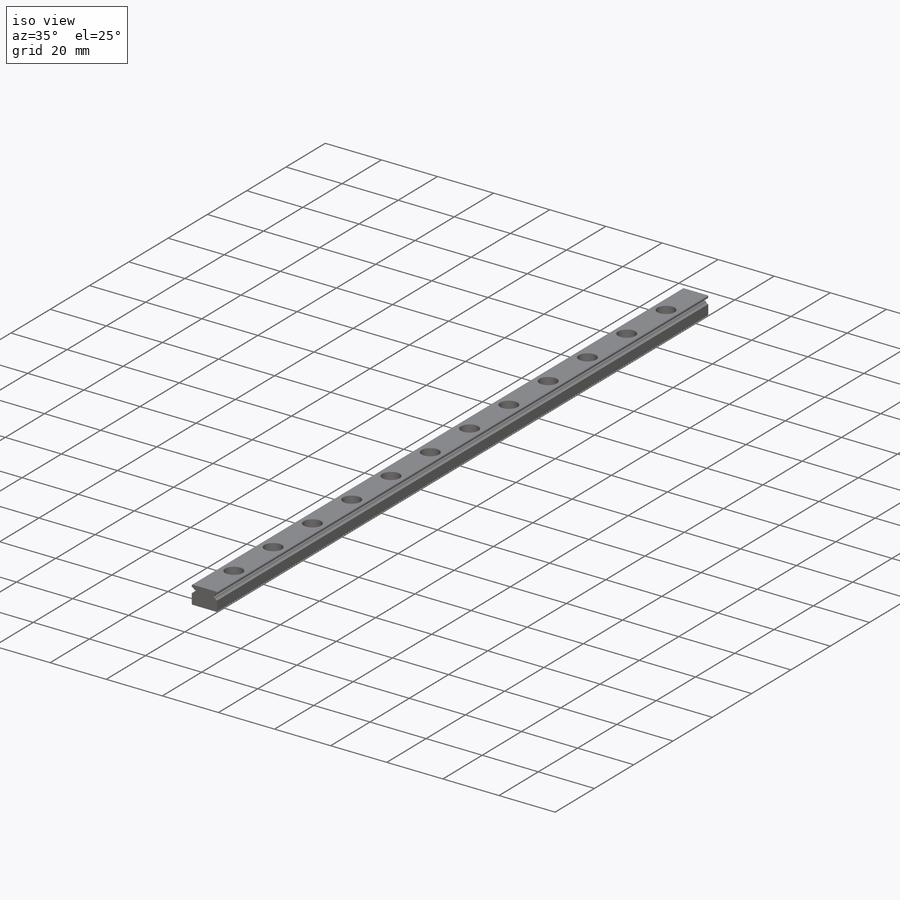
[diagram: iso view]
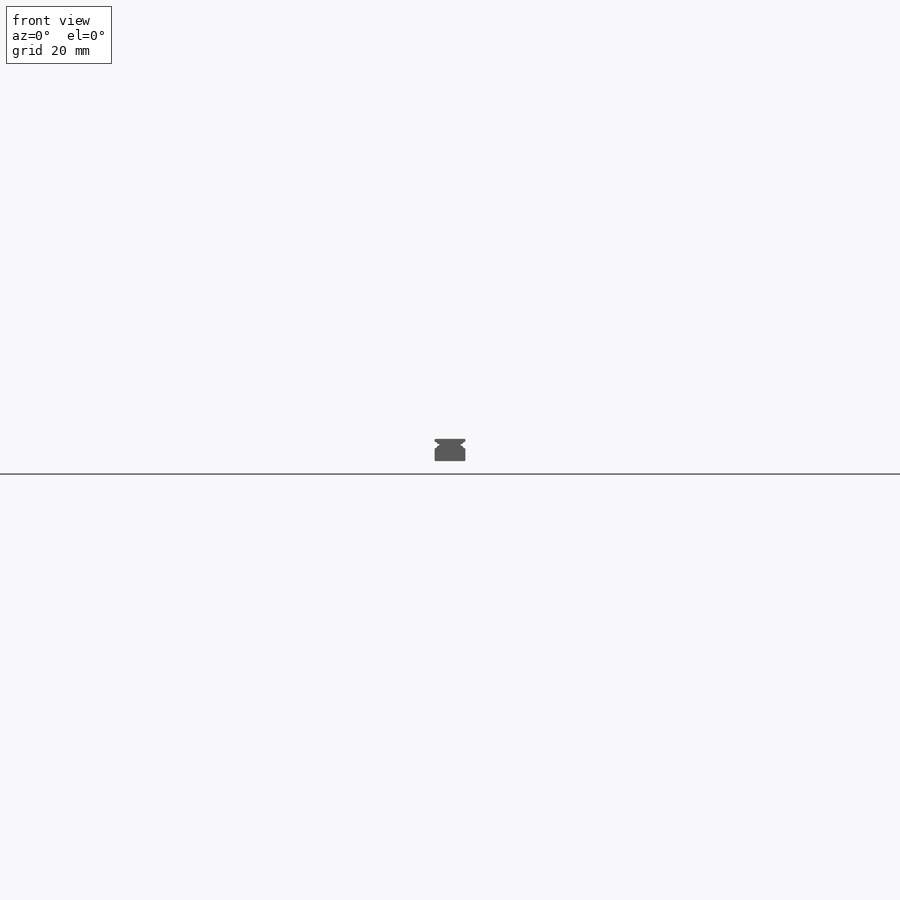
[diagram: front view]
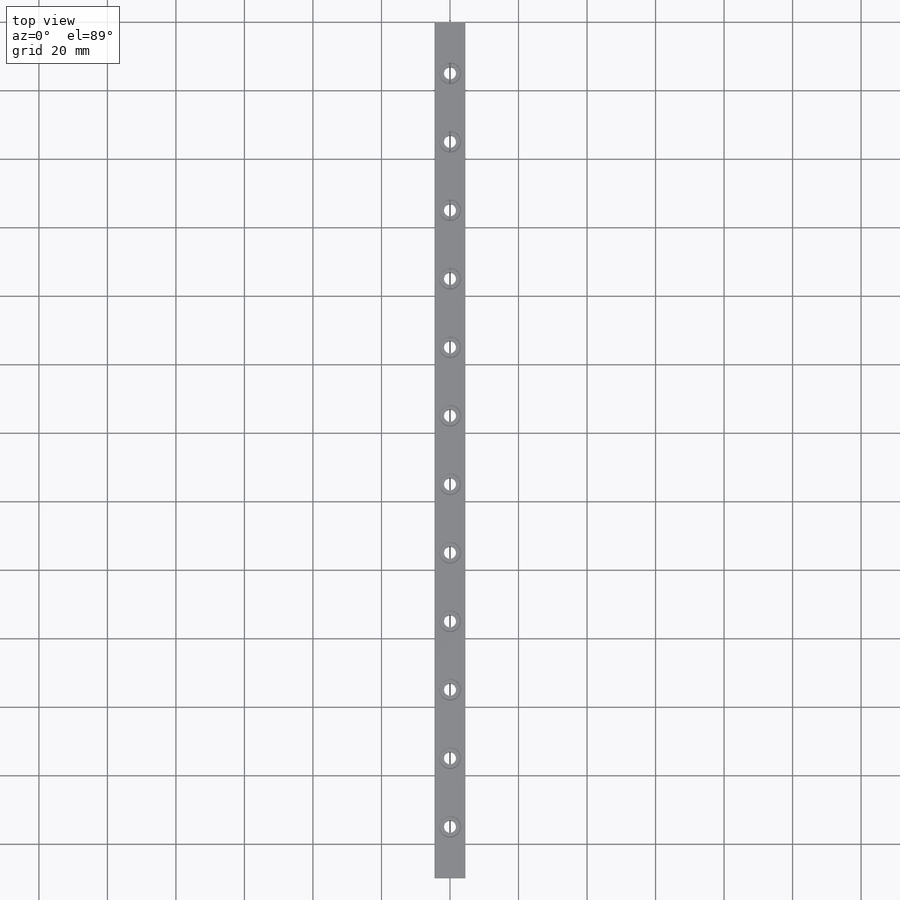
[diagram: top view]
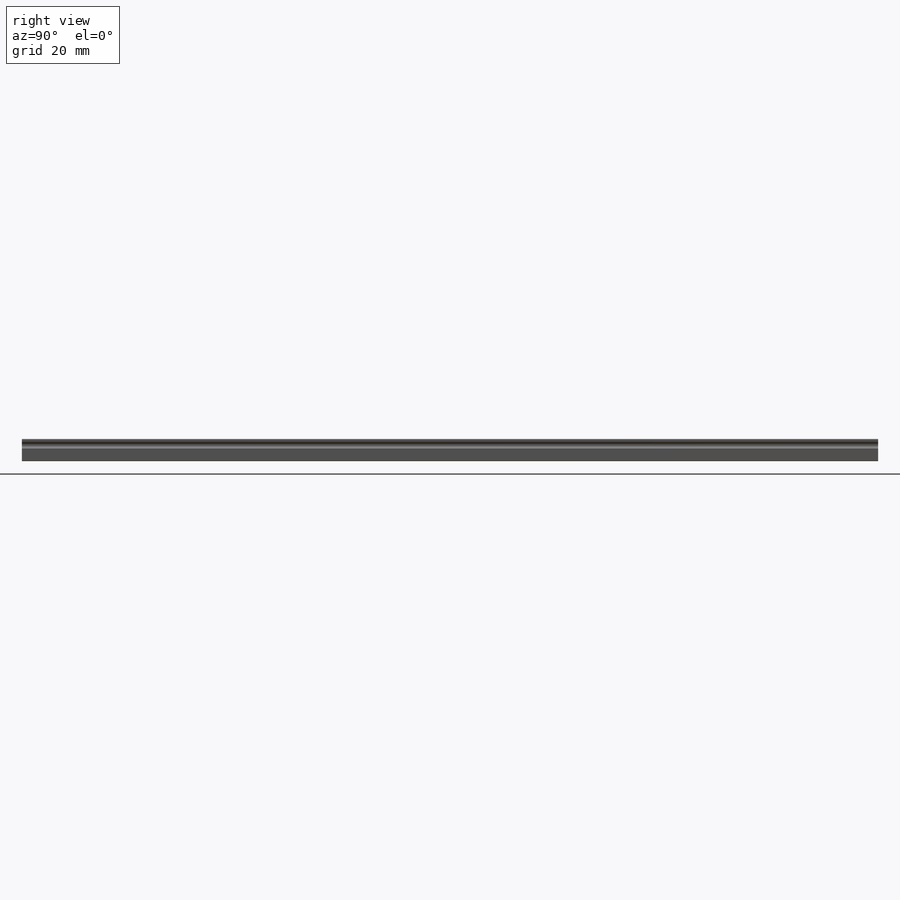
[diagram: right view]
SOLIDWORKS PART (.sldprt)
format: sldprt  version: not decoded by parser v0  size: 313,344 bytes
history: native  units: mm
features: plane x3, sketch x3, cut_extrude x2, material x1, extrude x1, chamfer x1, pattern_linear x1 (+9 scaffold rows collapsed)
feature tree (21):
  scaffold x9  (default folders/planes/origin — collapsed)
  material  "Материал <не указан>"
  plane  "Спереди"
  plane  "Сверху"
  plane  "Справа"
  sketch  "Sketch1"  dims[c1.D4=0.8mm c1.D5=0.8mm c2.D4=1.0mm c2.D1=9.0mm c2.D2=6.5mm c2.D3=1.5mm c3.D3=1.8mm c3.D5=0.1mm c3.D6=0.5mm c3.D7=0.5mm]
  extrude  "Extrude1"  Depth=250mm
  sketch  "Sketch2"  dims[D1=3.5mm D2=6.0mm D3=15.0mm]
  cut_extrude  "Extrude2"  [1 undecoded]
  cut_extrude  "Extrude4"  [1 undecoded]
  sketch  "Sketch"  dims[D1=3.5mm]
  chamfer  "Chamfer1"  Distance=0.2mm Angle=45deg
  pattern_linear  "LPattern1"  Count1=12 Count2=1 Spacing1=20mm Spacing2=10mm
decode coverage: 6 of 8 modeling features carry decoded parameters
note: 2 parameter values undecoded
note: suppression state not decoded; provenance and decode notes live in map.json
